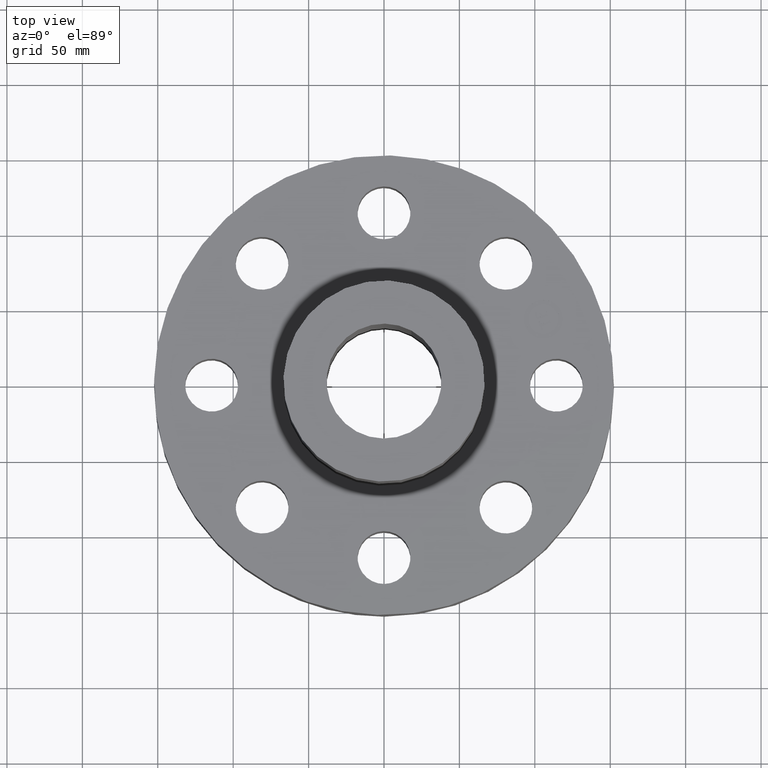
[diagram: clean part render]
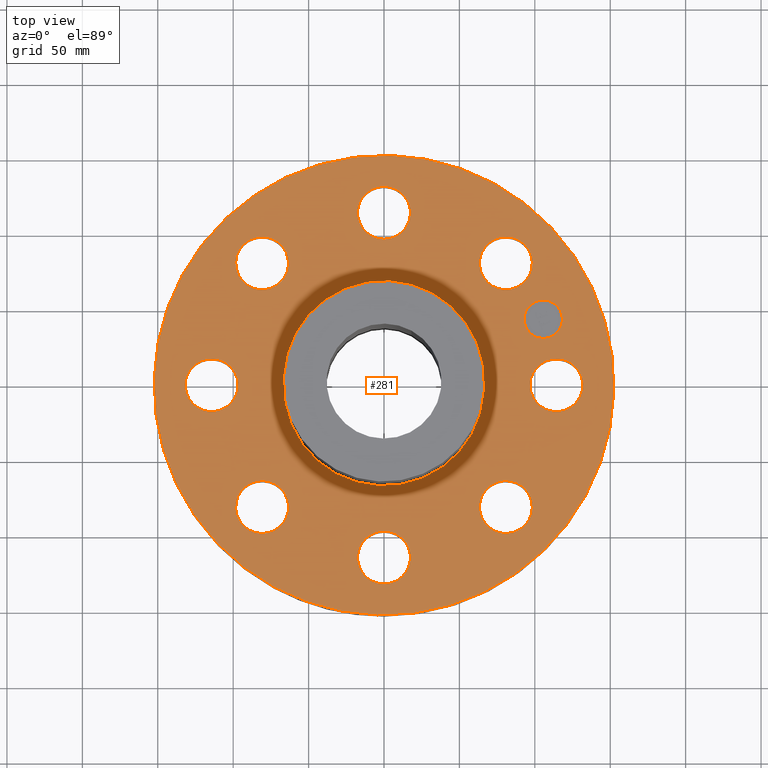
[diagram: same view with one face highlighted and labeled with its STEP entity id]
A machine part, top view. The second image highlights one B-rep face of the part: STEP entity #281.
In plain terms, the highlighted planar face has unit normal (0, 0, -1).
Its self-contained STEP definition (entity closure, byte-faithful):
#51=AXIS2_PLACEMENT_3D('Circle Axis2P3D',#49,#50,$) ;
#77=AXIS2_PLACEMENT_3D('Circle Axis2P3D',#75,#76,$) ;
#95=AXIS2_PLACEMENT_3D('Plane Axis2P3D',#92,#93,#94) ;
#99=AXIS2_PLACEMENT_3D('Circle Axis2P3D',#97,#98,$) ;
#108=AXIS2_PLACEMENT_3D('Circle Axis2P3D',#106,#107,$) ;
#121=AXIS2_PLACEMENT_3D('Circle Axis2P3D',#119,#120,$) ;
#130=AXIS2_PLACEMENT_3D('Circle Axis2P3D',#128,#129,$) ;
#139=AXIS2_PLACEMENT_3D('Circle Axis2P3D',#137,#138,$) ;
#148=AXIS2_PLACEMENT_3D('Circle Axis2P3D',#146,#147,$) ;
#157=AXIS2_PLACEMENT_3D('Circle Axis2P3D',#155,#156,$) ;
#166=AXIS2_PLACEMENT_3D('Circle Axis2P3D',#164,#165,$) ;
#175=AXIS2_PLACEMENT_3D('Circle Axis2P3D',#173,#174,$) ;
#184=AXIS2_PLACEMENT_3D('Circle Axis2P3D',#182,#183,$) ;
#193=AXIS2_PLACEMENT_3D('Circle Axis2P3D',#191,#192,$) ;
#202=AXIS2_PLACEMENT_3D('Circle Axis2P3D',#200,#201,$) ;
#211=AXIS2_PLACEMENT_3D('Circle Axis2P3D',#209,#210,$) ;
#220=AXIS2_PLACEMENT_3D('Circle Axis2P3D',#218,#219,$) ;
#229=AXIS2_PLACEMENT_3D('Circle Axis2P3D',#227,#228,$) ;
#238=AXIS2_PLACEMENT_3D('Circle Axis2P3D',#236,#237,$) ;
#247=AXIS2_PLACEMENT_3D('Circle Axis2P3D',#245,#246,$) ;
#256=AXIS2_PLACEMENT_3D('Circle Axis2P3D',#254,#255,$) ;
#265=AXIS2_PLACEMENT_3D('Circle Axis2P3D',#263,#264,$) ;
#274=AXIS2_PLACEMENT_3D('Circle Axis2P3D',#272,#273,$) ;
#44=CARTESIAN_POINT('Vertex',(3.89446803231,-0.330803621638,2.62000000001)) ;
#49=CARTESIAN_POINT('Axis2P3D Location',(4.50000000002,0.,2.62000000001)) ;
#53=CARTESIAN_POINT('Vertex',(5.10553196772,0.330803621638,2.62000000001)) ;
#75=CARTESIAN_POINT('Axis2P3D Location',(4.50000000002,0.,2.62000000001)) ;
#92=CARTESIAN_POINT('Axis2P3D Location',(0.,6.00000000002,2.62000000001)) ;
#97=CARTESIAN_POINT('Axis2P3D Location',(0.,0.,2.62000000001)) ;
#101=CARTESIAN_POINT('Vertex',(2.87655323164,5.26549537136,2.62000000001)) ;
#103=CARTESIAN_POINT('Vertex',(-2.87655323164,-5.26549537136,2.62000000001)) ;
#106=CARTESIAN_POINT('Axis2P3D Location',(0.,0.,2.62000000001)) ;
#119=CARTESIAN_POINT('Axis2P3D Location',(0.,0.,2.62000000001)) ;
#123=CARTESIAN_POINT('Vertex',(-1.25849203884,-2.30365422497,2.62000000001)) ;
#125=CARTESIAN_POINT('Vertex',(1.25849203884,2.30365422497,2.62000000001)) ;
#128=CARTESIAN_POINT('Axis2P3D Location',(0.,0.,2.62000000001)) ;
#137=CARTESIAN_POINT('Axis2P3D Location',(3.18198051535,-3.18198051535,2.62000000001)) ;
#141=CARTESIAN_POINT('Vertex',(2.51989127066,-2.98771823886,2.62000000001)) ;
#143=CARTESIAN_POINT('Vertex',(3.84406976004,-3.37624279184,2.62000000001)) ;
#146=CARTESIAN_POINT('Axis2P3D Location',(3.18198051535,-3.18198051535,2.62000000001)) ;
#155=CARTESIAN_POINT('Axis2P3D Location',(4.89547160465E-016,-4.50000000002,2.62000000001)) ;
#159=CARTESIAN_POINT('Vertex',(-0.330803621638,-3.89446803231,2.62000000001)) ;
#161=CARTESIAN_POINT('Vertex',(0.330803621638,-5.10553196772,2.62000000001)) ;
#164=CARTESIAN_POINT('Axis2P3D Location',(7.69288395016E-016,-4.50000000002,2.62000000001)) ;
#173=CARTESIAN_POINT('Axis2P3D Location',(-3.18198051535,-3.18198051535,2.62000000001)) ;
#177=CARTESIAN_POINT('Vertex',(-2.98771823886,-2.51989127066,2.62000000001)) ;
#179=CARTESIAN_POINT('Vertex',(-3.37624279184,-3.84406976004,2.62000000001)) ;
#182=CARTESIAN_POINT('Axis2P3D Location',(-3.18198051535,-3.18198051535,2.62000000001)) ;
#191=CARTESIAN_POINT('Axis2P3D Location',(-4.50000000002,-1.1189649382E-015,2.62000000001)) ;
#195=CARTESIAN_POINT('Vertex',(-3.89446803231,0.330803621638,2.62000000001)) ;
#197=CARTESIAN_POINT('Vertex',(-5.10553196772,-0.330803621638,2.62000000001)) ;
#200=CARTESIAN_POINT('Axis2P3D Location',(-4.50000000002,-1.1189649382E-015,2.62000000001)) ;
#209=CARTESIAN_POINT('Axis2P3D Location',(-3.18198051535,3.18198051535,2.62000000001)) ;
#213=CARTESIAN_POINT('Vertex',(-2.51989127066,2.98771823886,2.62000000001)) ;
#215=CARTESIAN_POINT('Vertex',(-3.84406976004,3.37624279184,2.62000000001)) ;
#218=CARTESIAN_POINT('Axis2P3D Location',(-3.18198051535,3.18198051535,2.62000000001)) ;
#227=CARTESIAN_POINT('Axis2P3D Location',(-1.1189649382E-015,4.50000000002,2.62000000001)) ;
#231=CARTESIAN_POINT('Vertex',(0.330803621638,3.89446803231,2.62000000001)) ;
#233=CARTESIAN_POINT('Vertex',(-0.330803621638,5.10553196772,2.62000000001)) ;
#236=CARTESIAN_POINT('Axis2P3D Location',(-6.99353086378E-016,4.50000000002,2.62000000001)) ;
#245=CARTESIAN_POINT('Axis2P3D Location',(3.18198051535,3.18198051535,2.62000000001)) ;
#249=CARTESIAN_POINT('Vertex',(2.98771823886,2.51989127066,2.62000000001)) ;
#251=CARTESIAN_POINT('Vertex',(3.37624279184,3.84406976004,2.62000000001)) ;
#254=CARTESIAN_POINT('Axis2P3D Location',(3.18198051535,3.18198051535,2.62000000001)) ;
#263=CARTESIAN_POINT('Axis2P3D Location',(4.15745789632,1.72207544565,2.62000000001)) ;
#267=CARTESIAN_POINT('Vertex',(4.34879961059,1.26013568401,2.62000000001)) ;
#269=CARTESIAN_POINT('Vertex',(3.96611618205,2.18401520729,2.62000000001)) ;
#272=CARTESIAN_POINT('Axis2P3D Location',(4.15745789632,1.72207544565,2.62000000001)) ;
#50=DIRECTION('Axis2P3D Direction',(0.,-0.,0.0393700787402)) ;
#76=DIRECTION('Axis2P3D Direction',(0.,-0.,0.0393700787402)) ;
#93=DIRECTION('Axis2P3D Direction',(0.,0.,-0.0393700787402)) ;
#94=DIRECTION('Axis2P3D XDirection',(0.0393700787402,0.,0.)) ;
#98=DIRECTION('Axis2P3D Direction',(0.,0.,-0.0393700787402)) ;
#107=DIRECTION('Axis2P3D Direction',(0.,0.,-0.0393700787402)) ;
#120=DIRECTION('Axis2P3D Direction',(0.,0.,-0.0393700787402)) ;
#129=DIRECTION('Axis2P3D Direction',(0.,0.,-0.0393700787402)) ;
#138=DIRECTION('Axis2P3D Direction',(0.,0.,-0.0393700787402)) ;
#147=DIRECTION('Axis2P3D Direction',(0.,0.,-0.0393700787402)) ;
#156=DIRECTION('Axis2P3D Direction',(0.,0.,-0.0393700787402)) ;
#165=DIRECTION('Axis2P3D Direction',(0.,0.,-0.0393700787402)) ;
#174=DIRECTION('Axis2P3D Direction',(0.,0.,-0.0393700787402)) ;
#183=DIRECTION('Axis2P3D Direction',(0.,0.,-0.0393700787402)) ;
#192=DIRECTION('Axis2P3D Direction',(0.,0.,-0.0393700787402)) ;
#201=DIRECTION('Axis2P3D Direction',(0.,0.,-0.0393700787402)) ;
#210=DIRECTION('Axis2P3D Direction',(0.,0.,-0.0393700787402)) ;
#219=DIRECTION('Axis2P3D Direction',(0.,0.,-0.0393700787402)) ;
#228=DIRECTION('Axis2P3D Direction',(0.,0.,-0.0393700787402)) ;
#237=DIRECTION('Axis2P3D Direction',(0.,0.,-0.0393700787402)) ;
#246=DIRECTION('Axis2P3D Direction',(0.,0.,-0.0393700787402)) ;
#255=DIRECTION('Axis2P3D Direction',(0.,0.,-0.0393700787402)) ;
#264=DIRECTION('Axis2P3D Direction',(0.,0.,-0.0393700787402)) ;
#273=DIRECTION('Axis2P3D Direction',(0.,0.,-0.0393700787402)) ;
#112=ORIENTED_EDGE('',*,*,#105,.F.) ;
#113=ORIENTED_EDGE('',*,*,#110,.F.) ;
#116=ORIENTED_EDGE('',*,*,#55,.T.) ;
#117=ORIENTED_EDGE('',*,*,#79,.T.) ;
#134=ORIENTED_EDGE('',*,*,#127,.T.) ;
#135=ORIENTED_EDGE('',*,*,#132,.T.) ;
#152=ORIENTED_EDGE('',*,*,#145,.T.) ;
#153=ORIENTED_EDGE('',*,*,#150,.T.) ;
#170=ORIENTED_EDGE('',*,*,#163,.T.) ;
#171=ORIENTED_EDGE('',*,*,#168,.T.) ;
#188=ORIENTED_EDGE('',*,*,#181,.T.) ;
#189=ORIENTED_EDGE('',*,*,#186,.T.) ;
#206=ORIENTED_EDGE('',*,*,#199,.T.) ;
#207=ORIENTED_EDGE('',*,*,#204,.T.) ;
#224=ORIENTED_EDGE('',*,*,#217,.T.) ;
#225=ORIENTED_EDGE('',*,*,#222,.T.) ;
#242=ORIENTED_EDGE('',*,*,#235,.T.) ;
#243=ORIENTED_EDGE('',*,*,#240,.T.) ;
#260=ORIENTED_EDGE('',*,*,#253,.T.) ;
#261=ORIENTED_EDGE('',*,*,#258,.T.) ;
#278=ORIENTED_EDGE('',*,*,#271,.F.) ;
#279=ORIENTED_EDGE('',*,*,#276,.F.) ;
#118=FACE_BOUND('',#115,.T.) ;
#136=FACE_BOUND('',#133,.T.) ;
#154=FACE_BOUND('',#151,.T.) ;
#172=FACE_BOUND('',#169,.T.) ;
#190=FACE_BOUND('',#187,.T.) ;
#208=FACE_BOUND('',#205,.T.) ;
#226=FACE_BOUND('',#223,.T.) ;
#244=FACE_BOUND('',#241,.T.) ;
#262=FACE_BOUND('',#259,.T.) ;
#280=FACE_BOUND('',#277,.T.) ;
#281=ADVANCED_FACE('PartBody',(#114,#118,#136,#154,#172,#190,#208,#226,#244,#262,#280),#96,.F.) ;
#52=CIRCLE('generated circle',#51,0.690000000003) ;
#78=CIRCLE('generated circle',#77,0.690000000003) ;
#100=CIRCLE('generated circle',#99,6.00000000002) ;
#109=CIRCLE('generated circle',#108,6.00000000002) ;
#122=CIRCLE('generated circle',#121,2.62500000001) ;
#131=CIRCLE('generated circle',#130,2.62500000001) ;
#140=CIRCLE('generated circle',#139,0.690000000003) ;
#149=CIRCLE('generated circle',#148,0.690000000003) ;
#158=CIRCLE('generated circle',#157,0.690000000003) ;
#167=CIRCLE('generated circle',#166,0.690000000003) ;
#176=CIRCLE('generated circle',#175,0.690000000003) ;
#185=CIRCLE('generated circle',#184,0.690000000003) ;
#194=CIRCLE('generated circle',#193,0.690000000003) ;
#203=CIRCLE('generated circle',#202,0.690000000003) ;
#212=CIRCLE('generated circle',#211,0.690000000003) ;
#221=CIRCLE('generated circle',#220,0.690000000003) ;
#230=CIRCLE('generated circle',#229,0.690000000003) ;
#239=CIRCLE('generated circle',#238,0.690000000003) ;
#248=CIRCLE('generated circle',#247,0.690000000003) ;
#257=CIRCLE('generated circle',#256,0.690000000003) ;
#266=CIRCLE('generated circle',#265,0.499999995002) ;
#275=CIRCLE('generated circle',#274,0.499999995002) ;
#55=EDGE_CURVE('',#54,#45,#52,.F.) ;
#79=EDGE_CURVE('',#45,#54,#78,.F.) ;
#105=EDGE_CURVE('',#102,#104,#100,.T.) ;
#110=EDGE_CURVE('',#104,#102,#109,.T.) ;
#127=EDGE_CURVE('',#124,#126,#122,.T.) ;
#132=EDGE_CURVE('',#126,#124,#131,.T.) ;
#145=EDGE_CURVE('',#142,#144,#140,.T.) ;
#150=EDGE_CURVE('',#144,#142,#149,.T.) ;
#163=EDGE_CURVE('',#160,#162,#158,.T.) ;
#168=EDGE_CURVE('',#162,#160,#167,.T.) ;
#181=EDGE_CURVE('',#178,#180,#176,.T.) ;
#186=EDGE_CURVE('',#180,#178,#185,.T.) ;
#199=EDGE_CURVE('',#196,#198,#194,.T.) ;
#204=EDGE_CURVE('',#198,#196,#203,.T.) ;
#217=EDGE_CURVE('',#214,#216,#212,.T.) ;
#222=EDGE_CURVE('',#216,#214,#221,.T.) ;
#235=EDGE_CURVE('',#232,#234,#230,.T.) ;
#240=EDGE_CURVE('',#234,#232,#239,.T.) ;
#253=EDGE_CURVE('',#250,#252,#248,.T.) ;
#258=EDGE_CURVE('',#252,#250,#257,.T.) ;
#271=EDGE_CURVE('',#268,#270,#266,.F.) ;
#276=EDGE_CURVE('',#270,#268,#275,.F.) ;
#111=EDGE_LOOP('',(#112,#113)) ;
#115=EDGE_LOOP('',(#116,#117)) ;
#133=EDGE_LOOP('',(#134,#135)) ;
#151=EDGE_LOOP('',(#152,#153)) ;
#169=EDGE_LOOP('',(#170,#171)) ;
#187=EDGE_LOOP('',(#188,#189)) ;
#205=EDGE_LOOP('',(#206,#207)) ;
#223=EDGE_LOOP('',(#224,#225)) ;
#241=EDGE_LOOP('',(#242,#243)) ;
#259=EDGE_LOOP('',(#260,#261)) ;
#277=EDGE_LOOP('',(#278,#279)) ;
#114=FACE_OUTER_BOUND('',#111,.T.) ;
#96=PLANE('',#95) ;
#45=VERTEX_POINT('',#44) ;
#54=VERTEX_POINT('',#53) ;
#102=VERTEX_POINT('',#101) ;
#104=VERTEX_POINT('',#103) ;
#124=VERTEX_POINT('',#123) ;
#126=VERTEX_POINT('',#125) ;
#142=VERTEX_POINT('',#141) ;
#144=VERTEX_POINT('',#143) ;
#160=VERTEX_POINT('',#159) ;
#162=VERTEX_POINT('',#161) ;
#178=VERTEX_POINT('',#177) ;
#180=VERTEX_POINT('',#179) ;
#196=VERTEX_POINT('',#195) ;
#198=VERTEX_POINT('',#197) ;
#214=VERTEX_POINT('',#213) ;
#216=VERTEX_POINT('',#215) ;
#232=VERTEX_POINT('',#231) ;
#234=VERTEX_POINT('',#233) ;
#250=VERTEX_POINT('',#249) ;
#252=VERTEX_POINT('',#251) ;
#268=VERTEX_POINT('',#267) ;
#270=VERTEX_POINT('',#269) ;